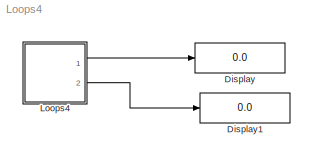
MODEL Loops4
KIND model
BLOCK [Display] Display
  Decimation = 1
  Ports = [1]
BLOCK [Display] Display1
  Decimation = 1
  Ports = [1]
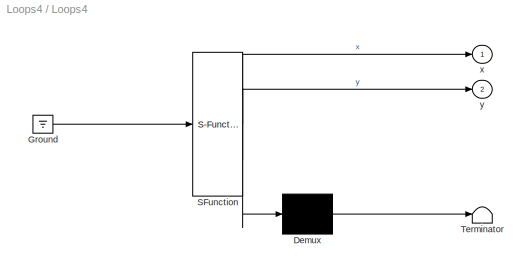
BLOCK [SubSystem] Loops4
  MaskDescription = Stateflow diagram
  MaskDisplay = plot(sf('Private','sfblk','xIcon'),sf('Private','sfblk','yIcon'));text(0.5,0,sf('Private', 'sfblk', 'tIcon'),'HorizontalAl','Center','VerticalAl','Bottom');
  MaskIconFrame = off
  MaskIconOpaque = off
  MaskIconRotate = none
  MaskIconUnits = autoscale
  MaskSelfModifiable = on
  MaskType = Stateflow
  MinAlgLoopOccurrences = off
  Ports = [0, 2]
  RTWSystemCode = Auto
  TreatAsAtomicUnit = off
BLOCK [Demux] Loops4/ Demux 
  Outputs = 1
  Ports = [1, 1]
BLOCK [Ground] Loops4/ Ground 
BLOCK [S-Function] Loops4/ SFunction 
  FunctionName = sf_sfun
  PortCounts = [1 3]
  Ports = [1, 3]
  Tag = Stateflow S-Function Loops4 2
BLOCK [Terminator] Loops4/ Terminator 
BLOCK [Outport] Loops4/x
  BusOutputAsStruct = off
  IconDisplay = Port number
BLOCK [Outport] Loops4/y
  BusOutputAsStruct = off
  IconDisplay = Port number
  Port = 2
LINE Loops4/ Demux :1 -> Loops4/ Terminator :1
LINE Loops4/ Ground :1 -> Loops4/ SFunction :1
LINE Loops4/ SFunction :1 -> Loops4/ Demux :1
LINE Loops4/ SFunction :2 -> Loops4/x:1
LINE Loops4/ SFunction :3 -> Loops4/y:1
LINE Loops4:1 -> Display:1
LINE Loops4:2 -> Display1:1
CHART Loops4 states=2 transitions=9
  STATE_LABEL 'A'
  STATE_LABEL 'B'
